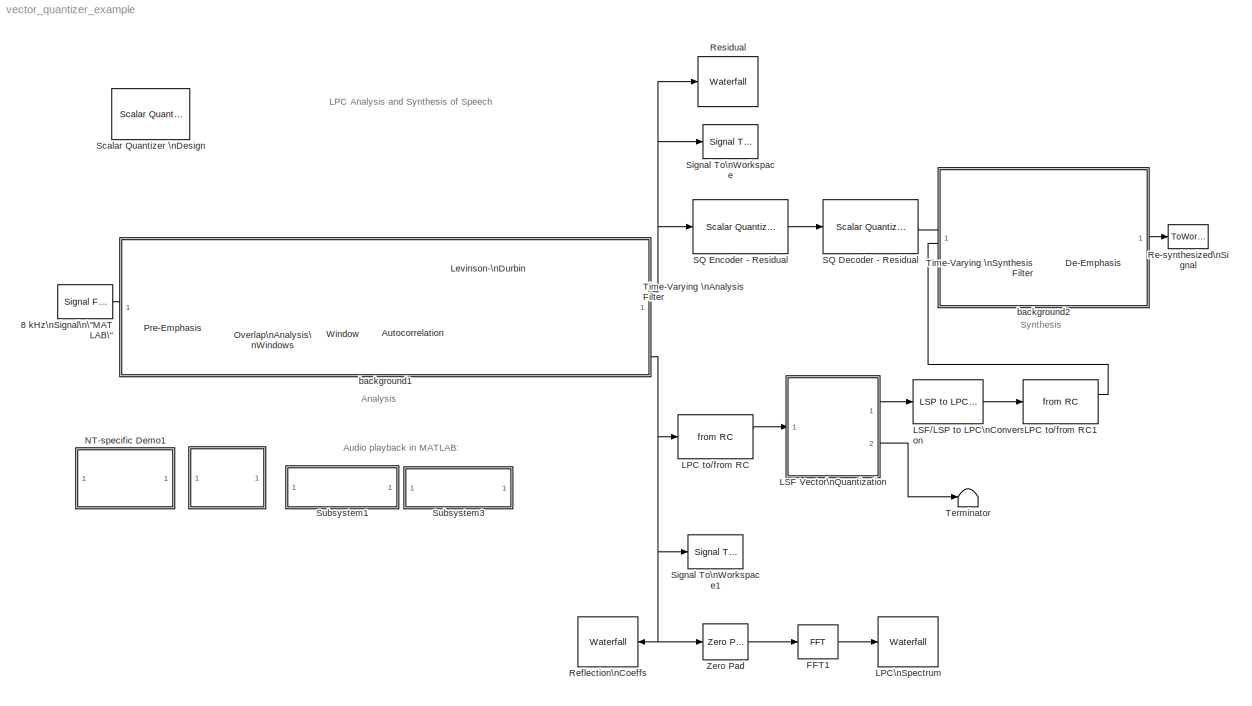
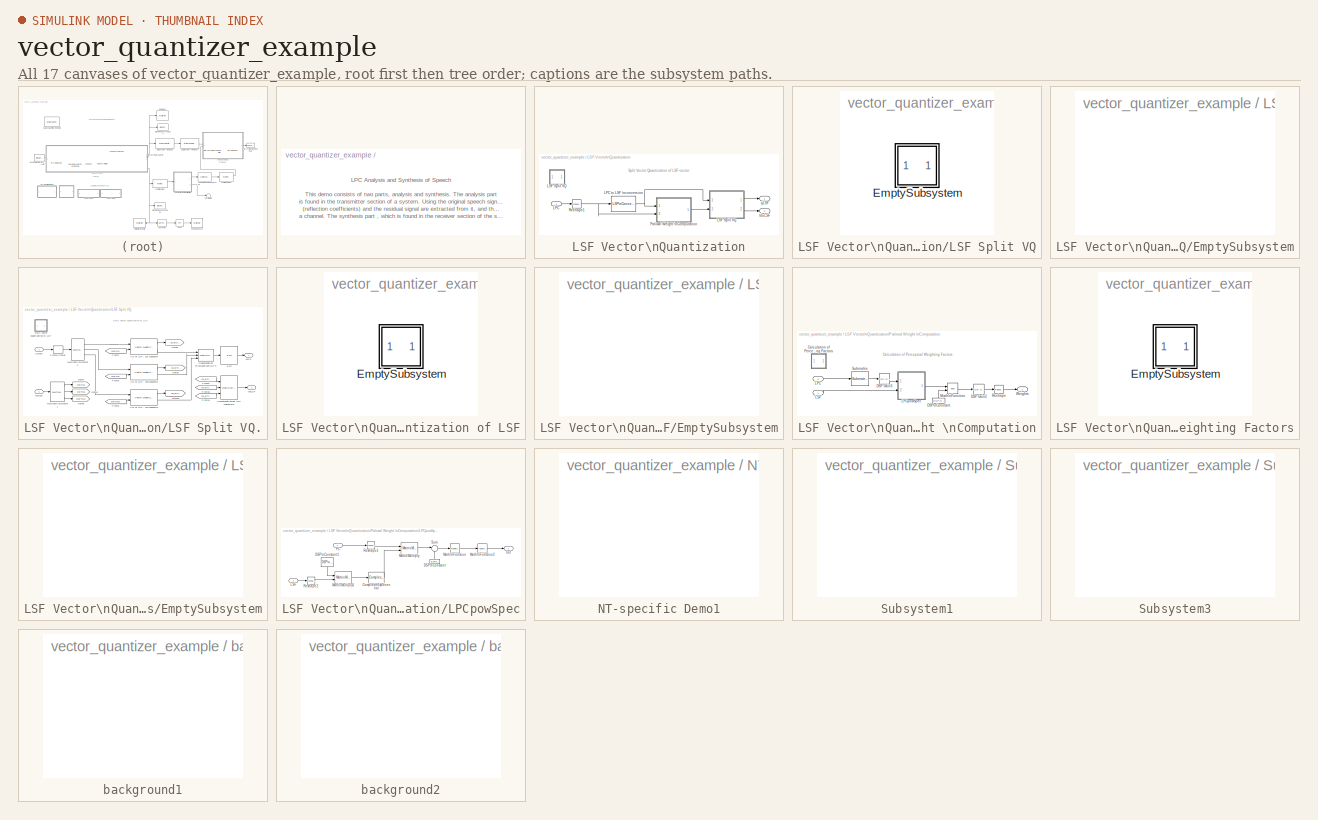
[diagram: thumbnail index - all 17 canvases of the model, root first then tree order]
MODEL vector_quantizer_example
KIND model
CONFIG AbsTol = auto
CONFIG FixedStep = auto
CONFIG MaxStep = auto
CONFIG MinStep = auto
CONFIG PreLoadFcn = load mtlb;
CONFIG RelTol = 1e-3
CONFIG Solver = FixedStepDiscrete
CONFIG SolverMode = SingleTasking
CONFIG StartTime = 0.0
CONFIG StopTime = 0.49
BLOCK [SubSystem]  
  MaskDisplay = disp('Info')
  MaskIconFrame = on
  MaskIconOpaque = on
  MaskIconRotate = none
  MaskIconUnits = autoscale
  MaskType = Frame-Based Simulation Info
  Ports = []
  TreatAsAtomicUnit = off
BLOCK [Reference] 8 kHz\nSignal\n\"MATLAB\"  REF=dspsrcs4/Signal From\nWorkspace
  OutputAfterFinalValue = Setting to zero
  Ports = [0, 1]
  ShowPortLabels = on
  SourceBlock = dspsrcs4/Signal From\nWorkspace
  SourceType = Signal From Workspace
  Ts = 1/8000
  X = mtlb*0.32
  nsamps = 80
BLOCK [Reference] Autocorrelation  REF=dspstat3/Autocorrelation
  AllPositiveLags = off
  Ports = [1, 1]
  SourceBlock = dspstat3/Autocorrelation
  SourceType = Autocorrelation
  accumFracLength = 30
  accumMode = Same as output
  accumWordLength = 40
  additionalParams = off
  allowOverrides = on
  bias = Biased
  domain = Time
  maxlag = 12
  outputFracLength = 15
  outputMode = Same as input
  outputWordLength = 16
  overflowMode = off
  prodOutputFracLength = 30
  prodOutputMode = Same as accumulator
  prodOutputWordLength = 32
  roundingMode = Floor
BLOCK [Reference] De-Emphasis  REF=dsparch4/Digital Filter
  AllPoleFiltStruct = Direct form
  BiQuadCoeffs = [1 0.3 0.4 1 0.1 0.2]
  CoeffSource = Specify via dialog
  DenCoeffs = [1 -.95]
  FIRFiltStruct = Direct form
  FiltPerSampPopup = One filter per frame
  IC = 0
  ICden = 0
  ICnum = 0
  IIRFiltStruct = Direct form II transposed
  LatticeCoeffs = [0.2 0.4]
  NumCoeffs = [1 -.95]
  Ports = [1, 1]
  SourceBlock = dsparch4/Digital Filter
  SourceType = Digital Filter
  TypePopup = IIR (all poles)
  accumFracLength = 30
  accumMode = Same as output
  accumWordLength = 40
  additionalParams = off
  allowOverrides = on
  denIgnore = on
  firstCoeffFracLength = 15
  firstCoeffMode = Same as input
  firstCoeffWordLength = 16
  memoryFracLength = 14
  memoryMode = Same as input
  memoryWordLength = 16
  outputFracLength = 15
  outputMode = Same as input
  outputWordLength = 16
  overflowMode = off
  prodOutputFracLength = 30
  prodOutputMode = Same as output
  prodOutputWordLength = 32
  roundingMode = Floor
  secondCoeffFracLength = 15
  secondCoeffMode = Same as numerator
  secondCoeffWordLength = 16
  showAcc = off
  showCoeff = off
  showMem = off
  showMpy = off
  showOut = off
  thirdCoeffFracLength = 15
  thirdCoeffMode = Same as input
  thirdCoeffWordLength = 16
BLOCK [Reference] FFT1  REF=dspxfrm3/FFT
  BitRevOrder = off
  CompMethod = Table lookup
  Ports = [1, 1]
  SkipNorm = off
  SourceBlock = dspxfrm3/FFT
  SourceType = FFT
  TableOpt = Speed
  accumFracLength = 24
  accumMode = Same as output
  accumWordLength = 32
  additionalParams = off
  allowOverrides = on
  firstCoeffFracLength = 15
  firstCoeffMode = Same as input
  firstCoeffWordLength = 16
  outputFracLength = 12
  outputMode = Same as input
  outputWordLength = 16
  overflowMode = off
  prodOutputFracLength = 24
  prodOutputMode = Same as accumulator
  prodOutputWordLength = 32
  roundingMode = Floor
BLOCK [Reference] LPC to//from RC  REF=dsplp/LPC to//from RC
  Ports = [1, 2]
  SourceBlock = dsplp/LPC to//from RC
  SourceType = LPC to/from RC
  conversion = RC to LPC
  error = Replace it with 1
  perr = on
  stability = off
BLOCK [Reference] LPC to//from RC1  REF=dsplp/LPC to//from RC
  Ports = [1, 2]
  SourceBlock = dsplp/LPC to//from RC
  SourceType = LPC to/from RC
  conversion = RC to LPC
  error = Replace it with 1
  perr = on
  stability = off
BLOCK [Reference] LPC\nSpectrum  REF=dspsnks4/Waterfall
  AutoExport = off
  AxisColor = [1 1 1]*.9
  AxisGrid = off
  AxisProperties = off
  CMapStr = autumn
  CameraView = [89945.9047576273 49093.2447020758 -7462.52930692949 -16.6995606364064 71 5.5 2.5389885178677 -5.30668596526891 0.808418434368868 0.0592442608385446 5.583225828012 14.2 1]
  DisplayProperties = off
  ExportMode = All visible
  FigPos = [452 44 407 353]
  HistoryFull = Overwrite
  HistoryLength = 100
  InportDimsHint = [129 1]
  MLExportName = ExportData
  MouseMode = Orbit
  NumTraces = 10
  OpenScopeAtSimStart = off
  Ports = [1]
  ShowPortLabels = off
  Snapshot = off
  SourceBlock = dspsnks4/Waterfall
  SourceType = Waterfall
  Suspend = off
  SyncSnapshots = off
  TNewest = 0.35
  TOldest = 0.1
  TraceProperties = off
  TrigRearmFcn = trigrearm
  TrigRearmMode = User-defined
  TrigRearmN = 100
  TrigRearmT = 0
  TrigStartFcn = trigPower
  TrigStartMode = Immediately
  TrigStartN = 1000
  TrigStartT = 10
  TrigStopFcn = trigend
  TrigStopMode = Never
  TrigStopN = 10
  TrigStopT = 0.1
  TriggerProperties = off
  UpdateInterval = 1
  XLabel = Frequency
  XformExpr = 20*log10(abs(u(129:2:end)))
  XformFcn = fliplr
  XformMode = FFT->Mag dB Fs/2
  XformProperties = off
  YLabel = Mag^2
  YMax = 11.2165685036536
  YMin = -44.6156897764664
  ZLabel = History
BLOCK [SubSystem] LSF Vector\nQuantization
  MaskIconFrame = on
  MaskIconOpaque = on
  MaskIconRotate = none
  MaskIconUnits = autoscale
  Ports = [1, 2]
  TreatAsAtomicUnit = off
BLOCK [Outport] LSF Vector\nQuantization/IdxLSF
  IconDisplay = Port number
  Port = 2
BLOCK [Inport] LSF Vector\nQuantization/LPC
  IconDisplay = Port number
BLOCK [Reference] LSF Vector\nQuantization/LPC to LSF \nconversion  REF=dsplp/LPC to LSF//LSP\nConversion
  NBisects = 4
  NSteps = 64
  Ports = [1, 1]
  RootStatus = off
  SourceBlock = dsplp/LPC to LSF//LSP\nConversion
  SourceType = LPC to LSF/LSP Conversion
  correction = off
  error = Ignore
  lastLSP = off
  output = LSF in range (0 pi)
BLOCK [SubSystem] LSF Vector\nQuantization/LSF Split VQ
  CopyFcn = docblock('breaklink',gcb);
  DeleteFcn = docblock('close_document',gcb);
  MaskCallbackString = |
  MaskDescription = Use this block to save long descriptive text with the model.  Double-clicking the block will open an editor.
  MaskDisplay = plot([.8 0 0 1 1 .8 .8 1],[1 1 0 0 .8 1 .8 .8]);\ntext(.5,.5,'DOC','horizontalalignment','center');\n
  MaskEnableString = on,on
  MaskIconFrame = off
  MaskIconOpaque = on
  MaskIconRotate = none
  MaskIconUnits = autoscale
  MaskPromptString = RTW Embedded Coder Flag|Document Type
  MaskStyleString = edit,popup(Text|RTF|HTML)
  MaskToolTipString = on,on
  MaskTunableValueString = off,off
  MaskType = DocBlock
  MaskValueString = |Text
  MaskVarAliasString = ,
  MaskVariables = ECoderFlag=&1;DocumentType=&2;
  MaskVisibilityString = on,off
  OpenFcn = docblock('edit_document',gcb);
  Ports = []
  PreSaveFcn = docblock('save_document',gcb);
  TreatAsAtomicUnit = off
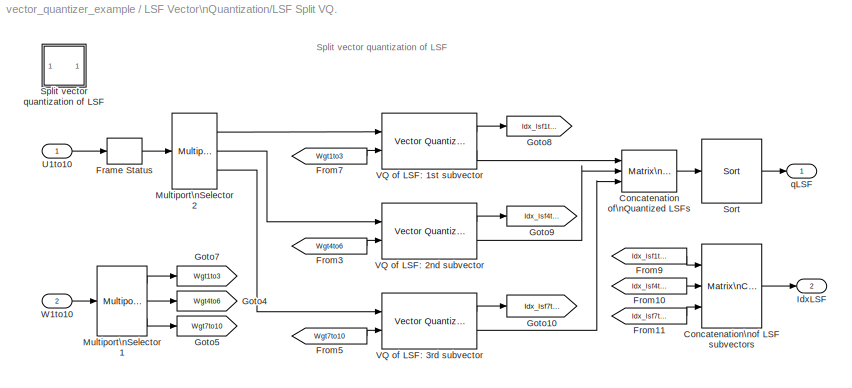
BLOCK [SubSystem] LSF Vector\nQuantization/LSF Split VQ.
  Ports = [2, 2]
  TreatAsAtomicUnit = off
BLOCK [Reference] LSF Vector\nQuantization/LSF Split VQ./Concatenation of\nQuantized LSFs  REF=simulink/Math\nOperations/Matrix\nConcatenation
  Ports = [3, 1]
  SourceBlock = simulink/Math\nOperations/Matrix\nConcatenation
  SourceType = Matrix Concatenation
  catMethod = Vertical
  numInports = 3
BLOCK [Reference] LSF Vector\nQuantization/LSF Split VQ./Concatenation\nof LSF subvectors  REF=simulink/Math\nOperations/Matrix\nConcatenation
  Ports = [3, 1]
  SourceBlock = simulink/Math\nOperations/Matrix\nConcatenation
  SourceType = Matrix Concatenation
  catMethod = Horizontal
  numInports = 3
BLOCK [FrameConversion] LSF Vector\nQuantization/LSF Split VQ./Frame Status
  OutFrame = Frame based
BLOCK [From] LSF Vector\nQuantization/LSF Split VQ./From10
  CloseFcn = tagdialog Close
  GotoTag = Idx_lsf4to6
BLOCK [From] LSF Vector\nQuantization/LSF Split VQ./From11
  CloseFcn = tagdialog Close
  GotoTag = Idx_lsf7to10
BLOCK [From] LSF Vector\nQuantization/LSF Split VQ./From3
  CloseFcn = tagdialog Close
  GotoTag = Wgt4to6
BLOCK [From] LSF Vector\nQuantization/LSF Split VQ./From5
  CloseFcn = tagdialog Close
  GotoTag = Wgt7to10
BLOCK [From] LSF Vector\nQuantization/LSF Split VQ./From7
  CloseFcn = tagdialog Close
  GotoTag = Wgt1to3
BLOCK [From] LSF Vector\nQuantization/LSF Split VQ./From9
  CloseFcn = tagdialog Close
  GotoTag = Idx_lsf1to3
BLOCK [Goto] LSF Vector\nQuantization/LSF Split VQ./Goto10
  GotoTag = Idx_lsf7to10
  TagVisibility = local
BLOCK [Goto] LSF Vector\nQuantization/LSF Split VQ./Goto4
  GotoTag = Wgt4to6
  TagVisibility = local
BLOCK [Goto] LSF Vector\nQuantization/LSF Split VQ./Goto5
  GotoTag = Wgt7to10
  TagVisibility = local
BLOCK [Goto] LSF Vector\nQuantization/LSF Split VQ./Goto7
  GotoTag = Wgt1to3
  TagVisibility = local
BLOCK [Goto] LSF Vector\nQuantization/LSF Split VQ./Goto8
  GotoTag = Idx_lsf1to3
  TagVisibility = local
BLOCK [Goto] LSF Vector\nQuantization/LSF Split VQ./Goto9
  GotoTag = Idx_lsf4to6
  TagVisibility = local
BLOCK [Outport] LSF Vector\nQuantization/LSF Split VQ./IdxLSF
  IconDisplay = Port number
  Port = 2
BLOCK [Reference] LSF Vector\nQuantization/LSF Split VQ./Multiport\nSelector1  REF=dspindex/Multiport\nSelector
  Ports = [1, 3]
  SourceBlock = dspindex/Multiport\nSelector
  SourceType = Multiport Selector
  idxCellArray = {1:3,4:6,7:10}
  idxErrMode = Clip Index
  rowsOrCols = Rows
BLOCK [Reference] LSF Vector\nQuantization/LSF Split VQ./Multiport\nSelector2  REF=dspindex/Multiport\nSelector
  Ports = [1, 3]
  SourceBlock = dspindex/Multiport\nSelector
  SourceType = Multiport Selector
  idxCellArray = {1:3,4:6,7:10}
  idxErrMode = Clip Index
  rowsOrCols = Rows
BLOCK [Reference] LSF Vector\nQuantization/LSF Split VQ./Sort  REF=dspstat3/Sort
  Ports = [1, 1]
  SourceBlock = dspstat3/Sort
  SourceType = Sort
  accumFracLength = 30
  accumMode = Same as input
  accumWordLength = 32
  additionalParams = off
  allowOverrides = on
  dir = Ascending
  otype = Value
  overflowMode = off
  prodOutputFracLength = 30
  prodOutputMode = Same as accumulator
  prodOutputWordLength = 32
  roundingMode = Floor
  sortAlg = Quick sort
BLOCK [SubSystem] LSF Vector\nQuantization/LSF Split VQ./Split vector quantization of LSF
  CopyFcn = docblock('breaklink',gcb);
  DeleteFcn = docblock('close_document',gcb);
  MaskCallbackString = |
  MaskDescription = Use this block to save long descriptive text with the model.  Double-clicking the block will open an editor.
  MaskDisplay = plot([.8 0 0 1 1 .8 .8 1],[1 1 0 0 .8 1 .8 .8]);\ntext(.5,.5,'DOC','horizontalalignment','center');\n
  MaskEnableString = on,on
  MaskIconFrame = off
  MaskIconOpaque = on
  MaskIconRotate = none
  MaskIconUnits = autoscale
  MaskPromptString = RTW Embedded Coder Flag|Document Type
  MaskStyleString = edit,popup(Text|RTF|HTML)
  MaskToolTipString = on,on
  MaskTunableValueString = off,off
  MaskType = DocBlock
  MaskValueString = |Text
  MaskVarAliasString = ,
  MaskVariables = ECoderFlag=&1;DocumentType=&2;
  MaskVisibilityString = on,off
  OpenFcn = docblock('edit_document',gcb);
  Ports = []
  PreSaveFcn = docblock('save_document',gcb);
  TreatAsAtomicUnit = off
BLOCK [SubSystem] LSF Vector\nQuantization/LSF Split VQ./Split vector quantization of LSF/EmptySubsystem
  Ports = []
  TreatAsAtomicUnit = off
BLOCK [Inport] LSF Vector\nQuantization/LSF Split VQ./U1to10
  IconDisplay = Port number
BLOCK [Reference] LSF Vector\nQuantization/LSF Split VQ./VQ of LSF: 1st subvector  REF=dspquant2/Vector Quantizer\nEncoder
  CBsource = Specify via dialog
  Ports = [2, 2]
  SourceBlock = dspquant2/Vector Quantizer\nEncoder
  SourceType = Vector Quantizer Encoder
  accumFracLength = 15
  accumMode = Same as input
  accumWordLength = 16
  additionalParams = off
  allowOverrides = off
  codebook = CB_lsf1to3_10bit
  distMeasure = Weighted squared error
  idtype = int32
  outQError = off
  outQU = on
  overflowMode = off
  prodOutputFracLength = 15
  prodOutputMode = Same as accumulator
  prodOutputWordLength = 16
  roundingMode = Floor
  tieBreakRule = Choose the lower index
  weights = [1 1 1]
  wgtSrc = Input port
BLOCK [Reference] LSF Vector\nQuantization/LSF Split VQ./VQ of LSF: 2nd subvector  REF=dspquant2/Vector Quantizer\nEncoder
  CBsource = Specify via dialog
  Ports = [2, 2]
  SourceBlock = dspquant2/Vector Quantizer\nEncoder
  SourceType = Vector Quantizer Encoder
  accumFracLength = 15
  accumMode = Same as input
  accumWordLength = 16
  additionalParams = off
  allowOverrides = off
  codebook = CB_lsf4to6_10bit
  distMeasure = Weighted squared error
  idtype = int32
  outQError = off
  outQU = on
  overflowMode = off
  prodOutputFracLength = 15
  prodOutputMode = Same as accumulator
  prodOutputWordLength = 16
  roundingMode = Floor
  tieBreakRule = Choose the lower index
  weights = [1 1 1]
  wgtSrc = Input port
BLOCK [Reference] LSF Vector\nQuantization/LSF Split VQ./VQ of LSF: 3rd subvector  REF=dspquant2/Vector Quantizer\nEncoder
  CBsource = Specify via dialog
  Ports = [2, 2]
  SourceBlock = dspquant2/Vector Quantizer\nEncoder
  SourceType = Vector Quantizer Encoder
  accumFracLength = 15
  accumMode = Same as input
  accumWordLength = 16
  additionalParams = off
  allowOverrides = off
  codebook = CB_lsf7to10_10bit
  distMeasure = Weighted squared error
  idtype = int32
  outQError = off
  outQU = on
  overflowMode = off
  prodOutputFracLength = 15
  prodOutputMode = Same as accumulator
  prodOutputWordLength = 16
  roundingMode = Floor
  tieBreakRule = Choose the lower index
  weights = [1 1 1]
  wgtSrc = Input port
BLOCK [Inport] LSF Vector\nQuantization/LSF Split VQ./W1to10
  IconDisplay = Port number
  Port = 2
BLOCK [Outport] LSF Vector\nQuantization/LSF Split VQ./qLSF
  IconDisplay = Port number
BLOCK [SubSystem] LSF Vector\nQuantization/LSF Split VQ/EmptySubsystem
  Ports = []
  TreatAsAtomicUnit = off
BLOCK [SubSystem] LSF Vector\nQuantization/Paliwal Weight \nComputation
  Ports = [2, 1]
  TreatAsAtomicUnit = off
BLOCK [SubSystem] LSF Vector\nQuantization/Paliwal Weight \nComputation/Calculation of Perceptual \nWeighting Factors
  CopyFcn = docblock('breaklink',gcb);
  DeleteFcn = docblock('close_document',gcb);
  MaskCallbackString = |
  MaskDescription = Use this block to save long descriptive text with the model.  Double-clicking the block will open an editor.
  MaskDisplay = plot([.8 0 0 1 1 .8 .8 1],[1 1 0 0 .8 1 .8 .8]);\ntext(.5,.5,'DOC','horizontalalignment','center');\n
  MaskEnableString = on,on
  MaskIconFrame = off
  MaskIconOpaque = on
  MaskIconRotate = none
  MaskIconUnits = autoscale
  MaskPromptString = RTW Embedded Coder Flag|Document Type
  MaskStyleString = edit,popup(Text|RTF|HTML)
  MaskToolTipString = on,on
  MaskTunableValueString = off,off
  MaskType = DocBlock
  MaskValueString = |Text
  MaskVarAliasString = ,
  MaskVariables = ECoderFlag=&1;DocumentType=&2;
  MaskVisibilityString = on,off
  OpenFcn = docblock('edit_document',gcb);
  Ports = []
  PreSaveFcn = docblock('save_document',gcb);
  TreatAsAtomicUnit = off
BLOCK [SubSystem] LSF Vector\nQuantization/Paliwal Weight \nComputation/Calculation of Perceptual \nWeighting Factors/EmptySubsystem
  Ports = []
  TreatAsAtomicUnit = off
BLOCK [Reference] LSF Vector\nQuantization/Paliwal Weight \nComputation/DSP Gain2  REF=dspmathops/DSP Gain
  Ports = [1, 1]
  ShowPortLabels = on
  SourceBlock = dspmathops/DSP Gain
  SourceType = DSP Gain
  additionalParams = off
  allowOverrides = on
  gainFracLength = 15
  gainMode = Same as input
  gainValue = [ones(1,8) 0.8 0.4]
  gainWordLength = 16
  overflowMode = off
  prodOutputFracLength = 15
  prodOutputMode = Same as input
  prodOutputWordLength = 16
  roundingMode = Floor
BLOCK [Reference] LSF Vector\nQuantization/Paliwal Weight \nComputation/DSP Gain3  REF=dspmathops/DSP Gain
  Ports = [1, 1]
  ShowPortLabels = on
  SourceBlock = dspmathops/DSP Gain
  SourceType = DSP Gain
  additionalParams = off
  allowOverrides = on
  gainFracLength = 15
  gainMode = Same as input
  gainValue = -1
  gainWordLength = 16
  overflowMode = off
  prodOutputFracLength = 15
  prodOutputMode = Same as input
  prodOutputWordLength = 16
  roundingMode = Floor
BLOCK [Reference] LSF Vector\nQuantization/Paliwal Weight \nComputation/DSP\nConstant  REF=dspsrcs4/DSP\nConstant
  AttributesFormatString = <path>
  FramebasedOutput = off
  InterpretAs1D = off
  Ports = [0, 1]
  SampleMode = Discrete
  ShowPortLabels = on
  SourceBlock = dspsrcs4/DSP\nConstant
  SourceType = DSP Constant
  Ts = -1
  Value = 0.15
  additionalParams = off
  allowOverrides = on
  continuousOutput = Sample-based
  dataType = Inherit from 'Constant value'
  discreteOutput = Sample-based
  fracBitsMode = Best precision
  framePeriod = -1
  numFracBits = 15
  sampTime = -1
  udDataType = sfix(16)
  wordLen = 16
BLOCK [Inport] LSF Vector\nQuantization/Paliwal Weight \nComputation/LPC
  IconDisplay = Port number
  Port = 2
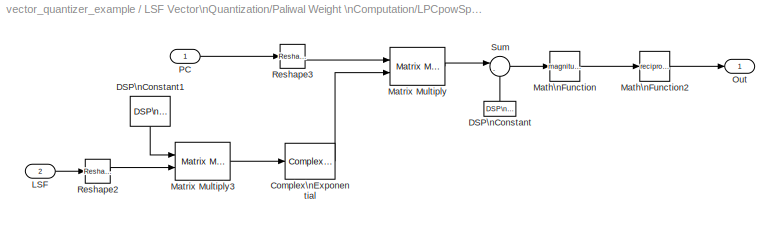
BLOCK [SubSystem] LSF Vector\nQuantization/Paliwal Weight \nComputation/LPCpowSpec
  Ports = [2, 1]
  TreatAsAtomicUnit = off
BLOCK [Reference] LSF Vector\nQuantization/Paliwal Weight \nComputation/LPCpowSpec/Complex\nExponential  REF=dspmathops/Complex\nExponential
  Ports = [1, 1]
  ShowPortLabels = on
  SourceBlock = dspmathops/Complex\nExponential
  SourceType = Complex Exponential
BLOCK [Reference] LSF Vector\nQuantization/Paliwal Weight \nComputation/LPCpowSpec/DSP\nConstant  REF=dspsrcs4/DSP\nConstant
  AttributesFormatString = <path>
  FramebasedOutput = on
  InterpretAs1D = off
  Ports = [0, 1]
  SampleMode = Discrete
  ShowPortLabels = on
  SourceBlock = dspsrcs4/DSP\nConstant
  SourceType = DSP Constant
  Ts = -1
  Value = 1
  additionalParams = off
  allowOverrides = on
  continuousOutput = Sample-based
  dataType = Inherit from 'Constant value'
  discreteOutput = Frame-based
  fracBitsMode = Best precision
  framePeriod = -1
  numFracBits = 15
  sampTime = -1
  udDataType = sfix(16)
  wordLen = 16
BLOCK [Reference] LSF Vector\nQuantization/Paliwal Weight \nComputation/LPCpowSpec/DSP\nConstant1  REF=dspsrcs4/DSP\nConstant
  AttributesFormatString = <path>
  FramebasedOutput = on
  InterpretAs1D = off
  Ports = [0, 1]
  SampleMode = Discrete
  ShowPortLabels = on
  SourceBlock = dspsrcs4/DSP\nConstant
  SourceType = DSP Constant
  Ts = -1
  Value = [1:10]'
  additionalParams = off
  allowOverrides = on
  continuousOutput = Sample-based
  dataType = Inherit from 'Constant value'
  discreteOutput = Frame-based
  fracBitsMode = Best precision
  framePeriod = -1
  numFracBits = 15
  sampTime = -1
  udDataType = sfix(16)
  wordLen = 16
BLOCK [Inport] LSF Vector\nQuantization/Paliwal Weight \nComputation/LPCpowSpec/LSF
  IconDisplay = Port number
  Port = 2
BLOCK [Math] LSF Vector\nQuantization/Paliwal Weight \nComputation/LPCpowSpec/Math\nFunction
  Operator = magnitude^2
  Ports = [1, 1]
BLOCK [Math] LSF Vector\nQuantization/Paliwal Weight \nComputation/LPCpowSpec/Math\nFunction2
  Operator = reciprocal
  Ports = [1, 1]
BLOCK [Reference] LSF Vector\nQuantization/Paliwal Weight \nComputation/LPCpowSpec/Matrix Multiply  REF=dspmtrx3/Matrix Multiply
  OptimizationLevel = None
  Ports = [2, 1]
  SourceBlock = dspmtrx3/Matrix Multiply
  SourceType = Matrix Multiply
  numInputPorts = 2
BLOCK [Reference] LSF Vector\nQuantization/Paliwal Weight \nComputation/LPCpowSpec/Matrix Multiply3  REF=dspmtrx3/Matrix Multiply
  OptimizationLevel = None
  Ports = [2, 1]
  SourceBlock = dspmtrx3/Matrix Multiply
  SourceType = Matrix Multiply
  numInputPorts = 2
BLOCK [Outport] LSF Vector\nQuantization/Paliwal Weight \nComputation/LPCpowSpec/Out
  IconDisplay = Port number
BLOCK [Inport] LSF Vector\nQuantization/Paliwal Weight \nComputation/LPCpowSpec/PC
  IconDisplay = Port number
BLOCK [Reference] LSF Vector\nQuantization/Paliwal Weight \nComputation/LPCpowSpec/Reshape2  REF=simulink/Math\nOperations/Reshape
  OutputDimensionality = Row vector
  OutputDimensions = [1,1]
  Ports = [1, 1]
  SourceBlock = simulink/Math\nOperations/Reshape
  SourceType = Reshape
BLOCK [Reference] LSF Vector\nQuantization/Paliwal Weight \nComputation/LPCpowSpec/Reshape3  REF=simulink/Math\nOperations/Reshape
  OutputDimensionality = Row vector
  OutputDimensions = [1,1]
  Ports = [1, 1]
  SourceBlock = simulink/Math\nOperations/Reshape
  SourceType = Reshape
BLOCK [Sum] LSF Vector\nQuantization/Paliwal Weight \nComputation/LPCpowSpec/Sum
  IconShape = round
  InputSameDT = off
  Inputs = |-+
  OutDataTypeMode = Inherit via internal rule
  Ports = [2, 1]
BLOCK [Inport] LSF Vector\nQuantization/Paliwal Weight \nComputation/LSF
  IconDisplay = Port number
BLOCK [Math] LSF Vector\nQuantization/Paliwal Weight \nComputation/Math\nFunction
  Operator = pow
  Ports = [2, 1]
BLOCK [Reference] LSF Vector\nQuantization/Paliwal Weight \nComputation/Reshape  REF=simulink/Math\nOperations/Reshape
  OutputDimensionality = Column vector
  OutputDimensions = [1,1]
  Ports = [1, 1]
  SourceBlock = simulink/Math\nOperations/Reshape
  SourceType = Reshape
BLOCK [Reference] LSF Vector\nQuantization/Paliwal Weight \nComputation/Submatrix  REF=dspmtrx3/Submatrix
  ColEndIndex = 1
  ColEndMode = Last
  ColSpan = All columns
  ColStartIndex = 1
  ColStartMode = First
  Ports = [1, 1]
  RowEndIndex = 1
  RowEndMode = Last
  RowSpan = Range of rows
  RowStartIndex = 2
  RowStartMode = Index
  SourceBlock = dspmtrx3/Submatrix
  SourceType = Submatrix
BLOCK [Outport] LSF Vector\nQuantization/Paliwal Weight \nComputation/Weights
  IconDisplay = Port number
BLOCK [Reference] LSF Vector\nQuantization/Reshape1  REF=simulink/Math\nOperations/Reshape
  OutputDimensionality = Column vector
  OutputDimensions = [1,1]
  Ports = [1, 1]
  SourceBlock = simulink/Math\nOperations/Reshape
  SourceType = Reshape
BLOCK [Outport] LSF Vector\nQuantization/qLSF
  IconDisplay = Port number
BLOCK [Reference] LSF//LSP to LPC\nConversion  REF=dsplp/LSF//LSP to LPC\nConversion
  Ports = [1, 1]
  SourceBlock = dsplp/LSF//LSP to LPC\nConversion
  SourceType = LSF/LSP to LPC Conversion
  input = LSP in range (-1 1)
BLOCK [Reference] Levinson-\nDurbin  REF=dspsolvers/Levinson-Durbin
  Ports = [1, 1]
  SourceBlock = dspsolvers/Levinson-Durbin
  SourceType = Levinson-Durbin
  coeffOutFcn = K
  outP = off
  zeroInpHandling = on
BLOCK [SubSystem] NT-specific Demo1
  MaskDisplay = disp('PC/Windows\\nLPC Demo')
  MaskIconFrame = on
  MaskIconOpaque = on
  MaskIconRotate = none
  MaskIconUnits = autoscale
  MaskType = NT-only Demo
  OpenFcn = dsplpc_win32
  Ports = []
  TreatAsAtomicUnit = off
BLOCK [Reference] Overlap\nAnalysis\nWindows  REF=dspbuff3/Buffer
  N = 160
  Ports = [1, 1]
  SourceBlock = dspbuff3/Buffer
  SourceType = Buffer
  V = 80
  ic = 0
BLOCK [Reference] Pre-Emphasis  REF=dsparch4/Digital Filter
  AllPoleFiltStruct = Direct form
  BiQuadCoeffs = [1 0.3 0.4 1 0.1 0.2]
  CoeffSource = Specify via dialog
  DenCoeffs = [1 0.1]
  FIRFiltStruct = Direct form
  FiltPerSampPopup = One filter per frame
  IC = 0
  ICden = 0
  ICnum = 0
  IIRFiltStruct = Direct form II transposed
  LatticeCoeffs = [0.2 0.4]
  NumCoeffs = [1 -.95]
  Ports = [1, 1]
  SourceBlock = dsparch4/Digital Filter
  SourceType = Digital Filter
  TypePopup = FIR (all zeros)
  accumFracLength = 30
  accumMode = Same as output
  accumWordLength = 40
  additionalParams = off
  allowOverrides = on
  denIgnore = on
  firstCoeffFracLength = 15
  firstCoeffMode = Same as input
  firstCoeffWordLength = 16
  memoryFracLength = 14
  memoryMode = Same as input
  memoryWordLength = 16
  outputFracLength = 15
  outputMode = Same as input
  outputWordLength = 16
  overflowMode = off
  prodOutputFracLength = 30
  prodOutputMode = Same as output
  prodOutputWordLength = 32
  roundingMode = Floor
  secondCoeffFracLength = 15
  secondCoeffMode = Same as numerator
  secondCoeffWordLength = 16
  showAcc = off
  showCoeff = off
  showMem = off
  showMpy = off
  showOut = off
  thirdCoeffFracLength = 15
  thirdCoeffMode = Same as input
  thirdCoeffWordLength = 16
BLOCK [ToWorkspace] Re-synthesized\nSignal
  MaxDataPoints = inf
  SampleTime = -1
  SaveFormat = Array
  VariableName = y_lpc
BLOCK [Reference] Reflection\nCoeffs  REF=dspsnks4/Waterfall
  AutoExport = off
  AxisColor = [1 1 1]*.9
  AxisGrid = on
  AxisProperties = off
  CMapStr = autumn
  CameraView = [73343.0440471642 150383.489958622 -231607.055769344 -0.0735265549347769 7.5 5.5 0.547487828138618 -2.62241953831449 4.03911084299836 0.00240035045613671 1 7.88928028685195 5.25952019123463]
  DisplayProperties = off
  ExportMode = All visible
  FigPos = [35 41 410 358]
  HistoryFull = Overwrite
  HistoryLength = 50
  InportDimsHint = [12 1]
  MLExportName = ExportData2
  MouseMode = Orbit
  NumTraces = 10
  OpenScopeAtSimStart = off
  Ports = [1]
  ShowPortLabels = off
  Snapshot = off
  SourceBlock = dspsnks4/Waterfall
  SourceType = Waterfall
  Suspend = off
  SyncSnapshots = off
  TNewest = 0.7
  TOldest = 0.1
  TraceProperties = off
  TrigRearmFcn = trigrearm
  TrigRearmMode = User-defined
  TrigRearmN = 100
  TrigRearmT = 0
  TrigStartFcn = trigPower
  TrigStartMode = Immediately
  TrigStartN = 1000
  TrigStartT = 10
  TrigStopFcn = trigend
  TrigStopMode = Never
  TrigStopN = 10
  TrigStopT = 0.1
  TriggerProperties = off
  UpdateInterval = 1
  XLabel = Coefficient
  XformExpr = 20*log10(abs(u(129:2:end)))
  XformFcn = fliplr
  XformMode = None
  XformProperties = off
  YLabel = RC Amplitude
  YMax = 0.877130504683106
  YMin = -1.02418361455266
  ZLabel = History
BLOCK [Reference] Residual  REF=dspsnks4/Waterfall
  AutoExport = off
  AxisColor = [1 1 1]*.9
  AxisGrid = on
  AxisProperties = off
  CMapStr = autumn
  CameraView = [62164.2347969079 1792549.89917746 -405278.370332737 -0.097024155318337 44.5 5.5 0.575539043328793 -33.5051317778483 7.57548038023531 0.00104183380472551 1 92.0645761641202 10.3443344004629]
  DisplayProperties = off
  ExportMode = All visible
  FigPos = [524 276 410 358]
  HistoryFull = Overwrite
  HistoryLength = 50
  InportDimsHint = [80 1]
  MLExportName = ExportData2
  MouseMode = Orbit
  NumTraces = 10
  OpenScopeAtSimStart = off
  Ports = [1]
  ShowPortLabels = off
  Snapshot = off
  SourceBlock = dspsnks4/Waterfall
  SourceType = Waterfall
  Suspend = off
  SyncSnapshots = off
  TNewest = 0.7
  TOldest = 0.1
  TraceProperties = off
  TrigRearmFcn = trigrearm
  TrigRearmMode = User-defined
  TrigRearmN = 100
  TrigRearmT = 0
  TrigStartFcn = trigPower
  TrigStartMode = Immediately
  TrigStartN = 1000
  TrigStartT = 10
  TrigStopFcn = trigend
  TrigStopMode = Never
  TrigStopN = 10
  TrigStopT = 0.1
  TriggerProperties = off
  UpdateInterval = 1
  XLabel = Coefficient
  XformExpr = 20*log10(abs(u(129:2:end)))
  XformFcn = fliplr
  XformMode = None
  XformProperties = off
  YLabel = Amplitude
  YMax = 0.386332221847528
  YMin = -0.580380532484202
  ZLabel = History
BLOCK [Reference] SQ Decoder - Residual  REF=dspquant2/Scalar Quantizer\nDecoder
  CBsource = Specify via dialog
  Ports = [1, 1]
  SourceBlock = dspquant2/Scalar Quantizer\nDecoder
  SourceType = Scalar Quantizer Decoder
  Tag = SQDESIGN_GUI_REALIZE_MODEL
  additionalParams = off
  allowOverrides = off
  codebook = [-0.52762    -0.50434    -0.48686    -0.48023    -0.47847      -0.471    -0.46439    -0.45511     -0.4483    -0.44149    -0.41351    -0.40777    -0.38649    -0.38257    -0.34459    -0.33656      -0.332    -0.31506     -0.3058    -0.29467    -0.28964    -0.27695    -0.26405    -0.25569    -0.24792    -0.24257    -0.23586    -0.22862     -0.2106    -0.20577    -0.20412    -0.18901    -0.18326    -0....<+1134ch>
  cwdtype = double
  invalidin = Clip
  outputFracLength = 15
  outputMode = User-defined
  outputWordLength = 16
BLOCK [Reference] SQ Encoder - Residual  REF=dspquant2/Scalar Quantizer\nEncoder
  BBoundary = [-inf -0.51598     -0.4956    -0.48355    -0.47935    -0.47473    -0.46769    -0.45975     -0.4517     -0.4449     -0.4275    -0.41064    -0.39713    -0.38453    -0.36358    -0.34057    -0.33428    -0.32353    -0.31043    -0.30024    -0.29216    -0.28329     -0.2705    -0.25987     -0.2518    -0.24524    -0.23922    -0.23224    -0.21961    -0.20819    -0.20495    -0.19656    -0.18613    -0.18151  ...<+1133ch>
  Ports = [1, 1]
  SearchMethod = Binary
  SourceBlock = dspquant2/Scalar Quantizer\nEncoder
  SourceType = Scalar Quantizer Encoder
  Tag = SQDESIGN_GUI_REALIZE_MODEL
  UBoundary = [ -0.51598     -0.4956    -0.48355    -0.47935    -0.47473    -0.46769    -0.45975     -0.4517     -0.4449     -0.4275    -0.41064    -0.39713    -0.38453    -0.36358    -0.34057    -0.33428    -0.32353    -0.31043    -0.30024    -0.29216    -0.28329     -0.2705    -0.25987     -0.2518    -0.24524    -0.23922    -0.23224    -0.21961    -0.20819    -0.20495    -0.19656    -0.18613    -0.18151    -0...<+1125ch>
  additionalParams = off
  allowOverrides = on
  codebook = [-0.52762    -0.50434    -0.48686    -0.48023    -0.47847      -0.471    -0.46439    -0.45511     -0.4483    -0.44149    -0.41351    -0.40777    -0.38649    -0.38257    -0.34459    -0.33656      -0.332    -0.31506     -0.3058    -0.29467    -0.28964    -0.27695    -0.26405    -0.25569    -0.24792    -0.24257    -0.23586    -0.22862     -0.2106    -0.20577    -0.20412    -0.18901    -0.18326    -0....<+1134ch>
  idtype = int32
  invalidin = Clip
  outQError = off
  outQU = off
  outStatus = off
  overflowMode = on
  paramSrc = Specify via dialog
  partType = Bounded
  roundingMode = Nearest
  tieBreakRule = Choose the lower index
BLOCK [Reference] Scalar Quantizer \nDesign  REF=dspquant2/Scalar Quantizer \nDesign
  Ports = []
  ShowPortLabels = on
  SourceBlock = dspquant2/Scalar Quantizer \nDesign
  SourceType = Scalar Quantizer Design
BLOCK [Reference] Signal To\nWorkspace  REF=dspsnks4/Signal To\nWorkspace
  Decimation = 1
  FrameMode = Concatenate frames (2-D array)
  MaxDataPoints = inf
  Ports = [1]
  ShowPortLabels = on
  SourceBlock = dspsnks4/Signal To\nWorkspace
  SourceType = Signal To Workspace
  VariableName = E
BLOCK [Reference] Signal To\nWorkspace1  REF=dspsnks4/Signal To\nWorkspace
  Decimation = 1
  FrameMode = Concatenate frames (2-D array)
  MaxDataPoints = inf
  Ports = [1]
  ShowPortLabels = on
  SourceBlock = dspsnks4/Signal To\nWorkspace
  SourceType = Signal To Workspace
  VariableName = K
BLOCK [SubSystem] Subsystem1
  MaskDisplay = disp('Original\\nSignal')
  MaskIconFrame = on
  MaskIconOpaque = on
  MaskIconRotate = none
  MaskIconUnits = autoscale
  OpenFcn = if exist('mtlb','var'), sound(mtlb*0.32,8000); else errordlg('Data not found in workspace - reload demo model.','DSP Blockset Demo Error'); end
  Ports = []
  TreatAsAtomicUnit = off
BLOCK [SubSystem] Subsystem3
  MaskDisplay = disp('Processed\\nSignal')
  MaskIconFrame = on
  MaskIconOpaque = on
  MaskIconRotate = none
  MaskIconUnits = autoscale
  OpenFcn = if exist('y_lpc','var'), sound(y_lpc,8000); else errordlg('You must run the simulation first.','DSP Blockset Demo Error'); end
  Ports = []
  TreatAsAtomicUnit = off
BLOCK [Terminator] Terminator
BLOCK [Reference] Time-Varying \nAnalysis Filter  REF=dsparch4/Digital Filter
  AllPoleFiltStruct = Direct form
  BiQuadCoeffs = [1 0.3 0.4 1 0.1 0.2]
  CoeffSource = Input port(s)
  DenCoeffs = [1 0.1]
  FIRFiltStruct = Lattice MA
  FiltPerSampPopup = One filter per frame
  IC = 0
  ICden = 0
  ICnum = 0
  IIRFiltStruct = Direct form II transposed
  LatticeCoeffs = [0.2 0.4]
  NumCoeffs = [1 -.95]
  Ports = [2, 1]
  SourceBlock = dsparch4/Digital Filter
  SourceType = Digital Filter
  TypePopup = FIR (all zeros)
  accumFracLength = 30
  accumMode = Same as output
  accumWordLength = 40
  additionalParams = off
  allowOverrides = on
  denIgnore = on
  firstCoeffFracLength = 15
  firstCoeffMode = Same as input
  firstCoeffWordLength = 16
  memoryFracLength = 14
  memoryMode = Same as input
  memoryWordLength = 16
  outputFracLength = 15
  outputMode = Same as input
  outputWordLength = 16
  overflowMode = off
  prodOutputFracLength = 30
  prodOutputMode = Same as output
  prodOutputWordLength = 32
  roundingMode = Floor
  secondCoeffFracLength = 15
  secondCoeffMode = Same as numerator
  secondCoeffWordLength = 16
  showAcc = off
  showCoeff = off
  showMem = off
  showMpy = off
  showOut = off
  thirdCoeffFracLength = 15
  thirdCoeffMode = Same as input
  thirdCoeffWordLength = 16
BLOCK [Reference] Time-Varying \nSynthesis Filter  REF=dsparch4/Digital Filter
  AllPoleFiltStruct = Lattice AR
  BiQuadCoeffs = [1 0.3 0.4 1 0.1 0.2]
  CoeffSource = Input port(s)
  DenCoeffs = [1 0.1]
  FIRFiltStruct = Direct form
  FiltPerSampPopup = One filter per frame
  IC = 0
  ICden = 0
  ICnum = 0
  IIRFiltStruct = Direct form II transposed
  LatticeCoeffs = [0.2 0.4]
  NumCoeffs = [1 -.95]
  Ports = [2, 1]
  SourceBlock = dsparch4/Digital Filter
  SourceType = Digital Filter
  TypePopup = IIR (all poles)
  accumFracLength = 30
  accumMode = Same as output
  accumWordLength = 40
  additionalParams = off
  allowOverrides = on
  denIgnore = on
  firstCoeffFracLength = 15
  firstCoeffMode = Same as input
  firstCoeffWordLength = 16
  memoryFracLength = 14
  memoryMode = Same as input
  memoryWordLength = 16
  outputFracLength = 15
  outputMode = Same as input
  outputWordLength = 16
  overflowMode = off
  prodOutputFracLength = 30
  prodOutputMode = Same as output
  prodOutputWordLength = 32
  roundingMode = Floor
  secondCoeffFracLength = 15
  secondCoeffMode = Same as numerator
  secondCoeffWordLength = 16
  showAcc = off
  showCoeff = off
  showMem = off
  showMpy = off
  showOut = off
  thirdCoeffFracLength = 15
  thirdCoeffMode = Same as input
  thirdCoeffWordLength = 16
BLOCK [Reference] Window  REF=dspsigops/Window\nFunction
  N = 64
  OptParams = off
  Ports = [1, 1]
  Rs = 50
  SourceBlock = dspsigops/Window\nFunction
  SourceType = Window Function
  UserParams = {1.0}
  UserWindow = hamming
  additionalParams = off
  allowOverrides = on
  beta = 10
  dataType = double
  firstCoeffFracLength = 15
  firstCoeffMode = Same as input
  firstCoeffWordLength = 16
  fracBitsMode = Best precision
  numFracBits = 15
  outputFracLength = 15
  outputMode = Same as input
  outputWordLength = 16
  overflowMode = off
  prodOutputFracLength = 15
  prodOutputMode = Same as output
  prodOutputWordLength = 16
  roundingMode = Floor
  sampmode = Continuous
  samptime = 1
  udDataType = sfix(16)
  winmode = Apply window to input
  winsamp = Symmetric
  wintype = Hamming
  wordLen = 16
BLOCK [Reference] Zero Pad  REF=dspsigops/Zero Pad
  Ports = [1, 1]
  SourceBlock = dspsigops/Zero Pad
  SourceType = Zero Pad
  numOutCols = 1
  numOutRows = 256
  padNumOutColsSpecMethod = User-specified
  padNumOutRowsSpecMethod = User-specified
  padSigAt = End
  trunc_flag = None
  zpadAlong = Columns
BLOCK [SubSystem] background1
  MaskDisplay = disp('')
  MaskIconFrame = on
  MaskIconOpaque = on
  MaskIconRotate = none
  MaskIconUnits = autoscale
  Ports = []
  TreatAsAtomicUnit = off
BLOCK [SubSystem] background2
  MaskDisplay = disp('')
  MaskIconFrame = on
  MaskIconOpaque = on
  MaskIconRotate = none
  MaskIconUnits = autoscale
  Ports = []
  TreatAsAtomicUnit = off
ANNOTATION (root): Audio playback in MATLAB:
ANNOTATION (root): Analysis
ANNOTATION (root): Synthesis
ANNOTATION (root): \nLPC Analysis and Synthesis of Speech\n
ANNOTATION  : LPC Analysis and Synthesis of Speech\n\nThis demo consists of two parts, analysis and synthesis. The analysis part\nis found in the transmitter section of a system. Using the original speech signal, parameters \n(reflection coefficients) and the residual signal are extracted from it, and then transmitted over\na channel. The synthesis part , which is found in the receiver section of the system, re...<+962ch>
ANNOTATION LSF Vector\nQuantization: Split Vector Quantization of LSF vector
ANNOTATION LSF Vector\nQuantization/LSF Split VQ.: Split vector quantization of LSF
ANNOTATION LSF Vector\nQuantization/Paliwal Weight \nComputation: Calculation of Perceptual Weighting Factors
LINE 8 kHz\nSignal\n\"MATLAB\":1 -> Pre-Emphasis:1
LINE Autocorrelation:1 -> Levinson-\nDurbin:1
LINE De-Emphasis:1 -> Re-synthesized\nSignal:1
LINE FFT1:1 -> LPC\nSpectrum:1
LINE LPC to//from RC1:1 -> Time-Varying \nSynthesis Filter:2
LINE LPC to//from RC:1 -> LSF Vector\nQuantization:1
NET LSF Vector\nQuantization/LPC to LSF \nconversion:1 -> LSF Vector\nQuantization/LSF Split VQ.:1, LSF Vector\nQuantization/Paliwal Weight \nComputation:1
LINE LSF Vector\nQuantization/LPC:1 -> LSF Vector\nQuantization/Reshape1:1
LINE LSF Vector\nQuantization/LSF Split VQ./Concatenation of\nQuantized LSFs:1 -> LSF Vector\nQuantization/LSF Split VQ./Sort:1
LINE LSF Vector\nQuantization/LSF Split VQ./Concatenation\nof LSF subvectors:1 -> LSF Vector\nQuantization/LSF Split VQ./IdxLSF:1
LINE LSF Vector\nQuantization/LSF Split VQ./Frame Status:1 -> LSF Vector\nQuantization/LSF Split VQ./Multiport\nSelector2:1
LINE LSF Vector\nQuantization/LSF Split VQ./From10:1 -> LSF Vector\nQuantization/LSF Split VQ./Concatenation\nof LSF subvectors:2
LINE LSF Vector\nQuantization/LSF Split VQ./From11:1 -> LSF Vector\nQuantization/LSF Split VQ./Concatenation\nof LSF subvectors:3
LINE LSF Vector\nQuantization/LSF Split VQ./From3:1 -> LSF Vector\nQuantization/LSF Split VQ./VQ of LSF: 2nd subvector:2
LINE LSF Vector\nQuantization/LSF Split VQ./From5:1 -> LSF Vector\nQuantization/LSF Split VQ./VQ of LSF: 3rd subvector:2
LINE LSF Vector\nQuantization/LSF Split VQ./From7:1 -> LSF Vector\nQuantization/LSF Split VQ./VQ of LSF: 1st subvector:2
LINE LSF Vector\nQuantization/LSF Split VQ./From9:1 -> LSF Vector\nQuantization/LSF Split VQ./Concatenation\nof LSF subvectors:1
LINE LSF Vector\nQuantization/LSF Split VQ./Multiport\nSelector1:1 -> LSF Vector\nQuantization/LSF Split VQ./Goto7:1
LINE LSF Vector\nQuantization/LSF Split VQ./Multiport\nSelector1:2 -> LSF Vector\nQuantization/LSF Split VQ./Goto4:1
LINE LSF Vector\nQuantization/LSF Split VQ./Multiport\nSelector1:3 -> LSF Vector\nQuantization/LSF Split VQ./Goto5:1
LINE LSF Vector\nQuantization/LSF Split VQ./Multiport\nSelector2:1 -> LSF Vector\nQuantization/LSF Split VQ./VQ of LSF: 1st subvector:1
LINE LSF Vector\nQuantization/LSF Split VQ./Multiport\nSelector2:2 -> LSF Vector\nQuantization/LSF Split VQ./VQ of LSF: 2nd subvector:1
LINE LSF Vector\nQuantization/LSF Split VQ./Multiport\nSelector2:3 -> LSF Vector\nQuantization/LSF Split VQ./VQ of LSF: 3rd subvector:1
LINE LSF Vector\nQuantization/LSF Split VQ./Sort:1 -> LSF Vector\nQuantization/LSF Split VQ./qLSF:1
LINE LSF Vector\nQuantization/LSF Split VQ./U1to10:1 -> LSF Vector\nQuantization/LSF Split VQ./Frame Status:1
LINE LSF Vector\nQuantization/LSF Split VQ./VQ of LSF: 1st subvector:1 -> LSF Vector\nQuantization/LSF Split VQ./Goto8:1
LINE LSF Vector\nQuantization/LSF Split VQ./VQ of LSF: 1st subvector:2 -> LSF Vector\nQuantization/LSF Split VQ./Concatenation of\nQuantized LSFs:1
LINE LSF Vector\nQuantization/LSF Split VQ./VQ of LSF: 2nd subvector:1 -> LSF Vector\nQuantization/LSF Split VQ./Goto9:1
LINE LSF Vector\nQuantization/LSF Split VQ./VQ of LSF: 2nd subvector:2 -> LSF Vector\nQuantization/LSF Split VQ./Concatenation of\nQuantized LSFs:2
LINE LSF Vector\nQuantization/LSF Split VQ./VQ of LSF: 3rd subvector:1 -> LSF Vector\nQuantization/LSF Split VQ./Goto10:1
LINE LSF Vector\nQuantization/LSF Split VQ./VQ of LSF: 3rd subvector:2 -> LSF Vector\nQuantization/LSF Split VQ./Concatenation of\nQuantized LSFs:3
LINE LSF Vector\nQuantization/LSF Split VQ./W1to10:1 -> LSF Vector\nQuantization/LSF Split VQ./Multiport\nSelector1:1
LINE LSF Vector\nQuantization/LSF Split VQ.:1 -> LSF Vector\nQuantization/qLSF:1
LINE LSF Vector\nQuantization/LSF Split VQ.:2 -> LSF Vector\nQuantization/IdxLSF:1
LINE LSF Vector\nQuantization/Paliwal Weight \nComputation/DSP Gain2:1 -> LSF Vector\nQuantization/Paliwal Weight \nComputation/Reshape:1
LINE LSF Vector\nQuantization/Paliwal Weight \nComputation/DSP Gain3:1 -> LSF Vector\nQuantization/Paliwal Weight \nComputation/LPCpowSpec:1
LINE LSF Vector\nQuantization/Paliwal Weight \nComputation/DSP\nConstant:1 -> LSF Vector\nQuantization/Paliwal Weight \nComputation/Math\nFunction:2
LINE LSF Vector\nQuantization/Paliwal Weight \nComputation/LPC:1 -> LSF Vector\nQuantization/Paliwal Weight \nComputation/Submatrix:1
LINE LSF Vector\nQuantization/Paliwal Weight \nComputation/LPCpowSpec/Complex\nExponential:1 -> LSF Vector\nQuantization/Paliwal Weight \nComputation/LPCpowSpec/Matrix Multiply:2
LINE LSF Vector\nQuantization/Paliwal Weight \nComputation/LPCpowSpec/DSP\nConstant1:1 -> LSF Vector\nQuantization/Paliwal Weight \nComputation/LPCpowSpec/Matrix Multiply3:1
LINE LSF Vector\nQuantization/Paliwal Weight \nComputation/LPCpowSpec/DSP\nConstant:1 -> LSF Vector\nQuantization/Paliwal Weight \nComputation/LPCpowSpec/Sum:2
LINE LSF Vector\nQuantization/Paliwal Weight \nComputation/LPCpowSpec/LSF:1 -> LSF Vector\nQuantization/Paliwal Weight \nComputation/LPCpowSpec/Reshape2:1
LINE LSF Vector\nQuantization/Paliwal Weight \nComputation/LPCpowSpec/Math\nFunction2:1 -> LSF Vector\nQuantization/Paliwal Weight \nComputation/LPCpowSpec/Out:1
LINE LSF Vector\nQuantization/Paliwal Weight \nComputation/LPCpowSpec/Math\nFunction:1 -> LSF Vector\nQuantization/Paliwal Weight \nComputation/LPCpowSpec/Math\nFunction2:1
LINE LSF Vector\nQuantization/Paliwal Weight \nComputation/LPCpowSpec/Matrix Multiply3:1 -> LSF Vector\nQuantization/Paliwal Weight \nComputation/LPCpowSpec/Complex\nExponential:1
LINE LSF Vector\nQuantization/Paliwal Weight \nComputation/LPCpowSpec/Matrix Multiply:1 -> LSF Vector\nQuantization/Paliwal Weight \nComputation/LPCpowSpec/Sum:1
LINE LSF Vector\nQuantization/Paliwal Weight \nComputation/LPCpowSpec/PC:1 -> LSF Vector\nQuantization/Paliwal Weight \nComputation/LPCpowSpec/Reshape3:1
LINE LSF Vector\nQuantization/Paliwal Weight \nComputation/LPCpowSpec/Reshape2:1 -> LSF Vector\nQuantization/Paliwal Weight \nComputation/LPCpowSpec/Matrix Multiply3:2
LINE LSF Vector\nQuantization/Paliwal Weight \nComputation/LPCpowSpec/Reshape3:1 -> LSF Vector\nQuantization/Paliwal Weight \nComputation/LPCpowSpec/Matrix Multiply:1
LINE LSF Vector\nQuantization/Paliwal Weight \nComputation/LPCpowSpec/Sum:1 -> LSF Vector\nQuantization/Paliwal Weight \nComputation/LPCpowSpec/Math\nFunction:1
LINE LSF Vector\nQuantization/Paliwal Weight \nComputation/LPCpowSpec:1 -> LSF Vector\nQuantization/Paliwal Weight \nComputation/Math\nFunction:1
LINE LSF Vector\nQuantization/Paliwal Weight \nComputation/LSF:1 -> LSF Vector\nQuantization/Paliwal Weight \nComputation/LPCpowSpec:2
LINE LSF Vector\nQuantization/Paliwal Weight \nComputation/Math\nFunction:1 -> LSF Vector\nQuantization/Paliwal Weight \nComputation/DSP Gain2:1
LINE LSF Vector\nQuantization/Paliwal Weight \nComputation/Reshape:1 -> LSF Vector\nQuantization/Paliwal Weight \nComputation/Weights:1
LINE LSF Vector\nQuantization/Paliwal Weight \nComputation/Submatrix:1 -> LSF Vector\nQuantization/Paliwal Weight \nComputation/DSP Gain3:1
LINE LSF Vector\nQuantization/Paliwal Weight \nComputation:1 -> LSF Vector\nQuantization/LSF Split VQ.:2
NET LSF Vector\nQuantization/Reshape1:1 -> LSF Vector\nQuantization/LPC to LSF \nconversion:1, LSF Vector\nQuantization/Paliwal Weight \nComputation:2
LINE LSF Vector\nQuantization:1 -> LSF//LSP to LPC\nConversion:1
LINE LSF Vector\nQuantization:2 -> Terminator:1
LINE LSF//LSP to LPC\nConversion:1 -> LPC to//from RC1:1
NET Levinson-\nDurbin:1 -> LPC to//from RC:1, Reflection\nCoeffs:1, Signal To\nWorkspace1:1, Time-Varying \nAnalysis Filter:2, Zero Pad:1
LINE Overlap\nAnalysis\nWindows:1 -> Window:1
NET Pre-Emphasis:1 -> Overlap\nAnalysis\nWindows:1, Time-Varying \nAnalysis Filter:1
LINE SQ Decoder - Residual:1 -> Time-Varying \nSynthesis Filter:1
LINE SQ Encoder - Residual:1 -> SQ Decoder - Residual:1
NET Time-Varying \nAnalysis Filter:1 -> Residual:1, SQ Encoder - Residual:1, Signal To\nWorkspace:1
LINE Time-Varying \nSynthesis Filter:1 -> De-Emphasis:1
LINE Window:1 -> Autocorrelation:1
LINE Zero Pad:1 -> FFT1:1
note: NET lines group one-source signal fan-out (src -> all destinations, sorted); 1:1 wires keep LINE
note: 3 file-system paths scrubbed to <path> (not preserved elsewhere — flat text is the only slx artifact)
